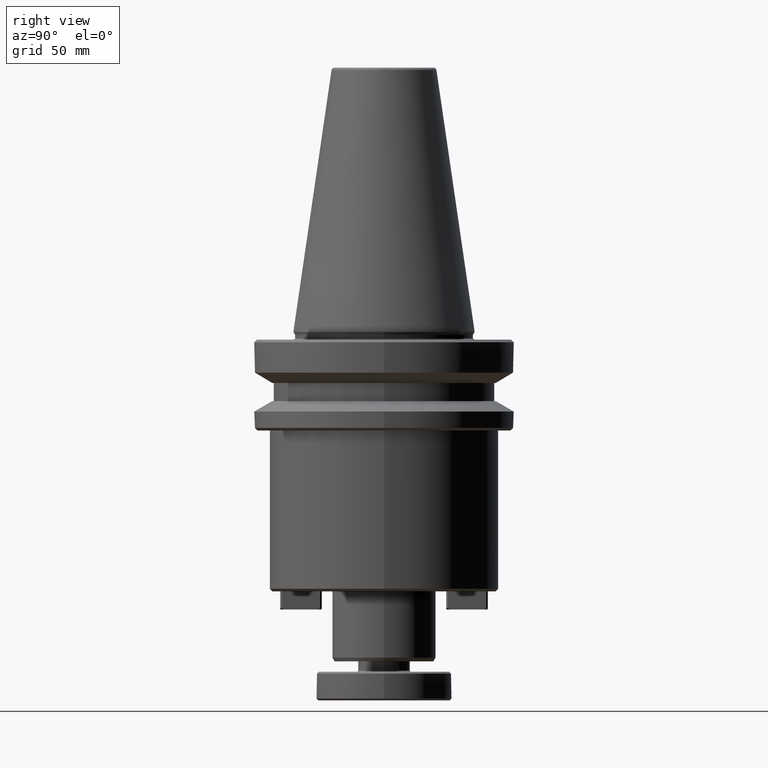
[diagram: clean part render]
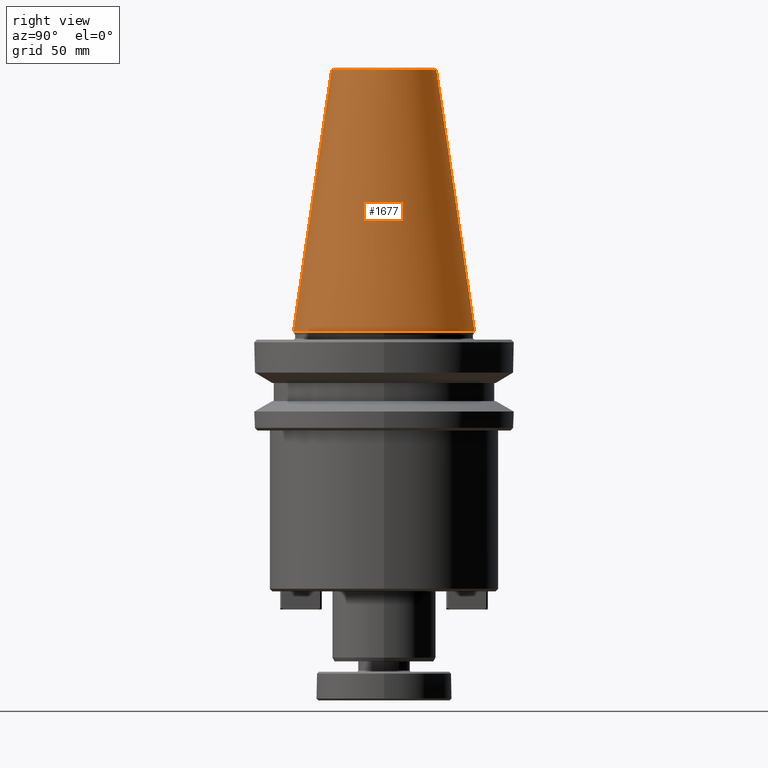
[diagram: same view with one face highlighted and labeled with its STEP entity id]
A machine part, right view. The second image highlights one B-rep face of the part: STEP entity #1677.
In plain terms, the highlighted conical surface has half-angle 8.297 deg.
Its self-contained STEP definition (entity closure, byte-faithful):
#63 = EDGE_CURVE ( 'NONE', #2707, #1446, #2066, .T. ) ;
#66 = CARTESIAN_POINT ( 'NONE',  ( 3.375666405914009500E-015, -20.20381605152244500, 100.9443082272672700 ) ) ;
#83 = CIRCLE ( 'NONE', #2062, 34.92499999999999700 ) ;
#247 = ORIENTED_EDGE ( 'NONE', *, *, #63, .T. ) ;
#285 = DIRECTION ( 'NONE',  ( 0.0000000000000000000, 2.205789485339712300E-032, -1.000000000000000000 ) ) ;
#289 = EDGE_CURVE ( 'NONE', #494, #1891, #524, .T. ) ;
#290 = CARTESIAN_POINT ( 'NONE',  ( 0.0000000000000000000, 0.0000000000000000000, -1.235024670767087600E-014 ) ) ;
#307 = EDGE_LOOP ( 'NONE', ( #746, #1829, #2157, #2442, #247, #686 ) ) ;
#330 = DIRECTION ( 'NONE',  ( 0.0000000000000000000, 1.000000000000000000, 4.411578970679424000E-032 ) ) ;
#385 = VERTEX_POINT ( 'NONE', #830 ) ;
#483 = VECTOR ( 'NONE', #2107, 1000.000000000000000 ) ;
#494 = VERTEX_POINT ( 'NONE', #2096 ) ;
#524 = CIRCLE ( 'NONE', #1965, 20.20381605152244500 ) ;
#535 = CONICAL_SURFACE ( 'NONE', #757, 34.92499999999999700, 0.1448138465474120300 ) ;
#542 = VERTEX_POINT ( 'NONE', #619 ) ;
#619 = CARTESIAN_POINT ( 'NONE',  ( 0.0000000000000000000, 20.20381605152244500, 100.9443082272672700 ) ) ;
#627 = CARTESIAN_POINT ( 'NONE',  ( 0.0000000000000000000, 34.92499999999999700, 0.0000000000000000000 ) ) ;
#653 = FACE_OUTER_BOUND ( 'NONE', #307, .T. ) ;
#685 = AXIS2_PLACEMENT_3D ( 'NONE', #1419, #1416, #1413 ) ;
#686 = ORIENTED_EDGE ( 'NONE', *, *, #878, .F. ) ;
#715 = AXIS2_PLACEMENT_3D ( 'NONE', #1901, #1898, #1781 ) ;
#746 = ORIENTED_EDGE ( 'NONE', *, *, #975, .T. ) ;
#757 = AXIS2_PLACEMENT_3D ( 'NONE', #290, #285, #330 ) ;
#776 = LINE ( 'NONE', #2035, #2580 ) ;
#830 = CARTESIAN_POINT ( 'NONE',  ( 4.277078946022130900E-015, -34.92499999999999700, 0.0000000000000000000 ) ) ;
#878 = EDGE_CURVE ( 'NONE', #542, #1446, #776, .T. ) ;
#975 = EDGE_CURVE ( 'NONE', #542, #494, #1910, .T. ) ;
#1300 = CARTESIAN_POINT ( 'NONE',  ( 0.0000000000000000000, 0.0000000000000000000, 100.9443082272672700 ) ) ;
#1338 = CARTESIAN_POINT ( 'NONE',  ( 34.92499999999999700, 0.0000000000000000000, 0.0000000000000000000 ) ) ;
#1413 = DIRECTION ( 'NONE',  ( -1.000000000000000000, 0.0000000000000000000, 0.0000000000000000000 ) ) ;
#1416 = DIRECTION ( 'NONE',  ( 0.0000000000000000000, 0.0000000000000000000, -1.000000000000000000 ) ) ;
#1419 = CARTESIAN_POINT ( 'NONE',  ( 0.0000000000000000000, 0.0000000000000000000, 100.9443082272672700 ) ) ;
#1446 = VERTEX_POINT ( 'NONE', #627 ) ;
#1483 = DIRECTION ( 'NONE',  ( -1.000000000000000000, 0.0000000000000000000, -3.611427007686981100E-016 ) ) ;
#1487 = DIRECTION ( 'NONE',  ( -0.0000000000000000000, -0.0000000000000000000, 1.000000000000000000 ) ) ;
#1491 = CARTESIAN_POINT ( 'NONE',  ( 0.0000000000000000000, 0.0000000000000000000, 0.0000000000000000000 ) ) ;
#1677 = ADVANCED_FACE ( 'NONE', ( #653 ), #535, .T. ) ;
#1781 = DIRECTION ( 'NONE',  ( -1.000000000000000000, 0.0000000000000000000, -3.611427007686981100E-016 ) ) ;
#1829 = ORIENTED_EDGE ( 'NONE', *, *, #289, .T. ) ;
#1891 = VERTEX_POINT ( 'NONE', #66 ) ;
#1898 = DIRECTION ( 'NONE',  ( -0.0000000000000000000, -0.0000000000000000000, 1.000000000000000000 ) ) ;
#1901 = CARTESIAN_POINT ( 'NONE',  ( 0.0000000000000000000, 0.0000000000000000000, 0.0000000000000000000 ) ) ;
#1910 = CIRCLE ( 'NONE', #685, 20.20381605152244500 ) ;
#1923 = DIRECTION ( 'NONE',  ( -1.000000000000000000, 0.0000000000000000000, 0.0000000000000000000 ) ) ;
#1965 = AXIS2_PLACEMENT_3D ( 'NONE', #1300, #2143, #1923 ) ;
#2035 = CARTESIAN_POINT ( 'NONE',  ( 0.0000000000000000000, 34.92499999999999700, -1.235024670767087400E-014 ) ) ;
#2062 = AXIS2_PLACEMENT_3D ( 'NONE', #1491, #1487, #1483 ) ;
#2066 = CIRCLE ( 'NONE', #715, 34.92499999999999700 ) ;
#2096 = CARTESIAN_POINT ( 'NONE',  ( 20.20381605152244500, 0.0000000000000000000, 100.9443082272672700 ) ) ;
#2107 = DIRECTION ( 'NONE',  ( 1.767266086135278000E-017, -0.1443082272673000500, -0.9895327864921754600 ) ) ;
#2112 = CARTESIAN_POINT ( 'NONE',  ( 4.277078946022130900E-015, -34.92499999999999700, -1.235024670767087800E-014 ) ) ;
#2143 = DIRECTION ( 'NONE',  ( 0.0000000000000000000, 0.0000000000000000000, -1.000000000000000000 ) ) ;
#2157 = ORIENTED_EDGE ( 'NONE', *, *, #2396, .T. ) ;
#2287 = DIRECTION ( 'NONE',  ( 0.0000000000000000000, 0.1443082272673000500, -0.9895327864921754600 ) ) ;
#2396 = EDGE_CURVE ( 'NONE', #1891, #385, #2434, .T. ) ;
#2434 = LINE ( 'NONE', #2112, #483 ) ;
#2442 = ORIENTED_EDGE ( 'NONE', *, *, #2628, .T. ) ;
#2580 = VECTOR ( 'NONE', #2287, 1000.000000000000000 ) ;
#2628 = EDGE_CURVE ( 'NONE', #385, #2707, #83, .T. ) ;
#2707 = VERTEX_POINT ( 'NONE', #1338 ) ;